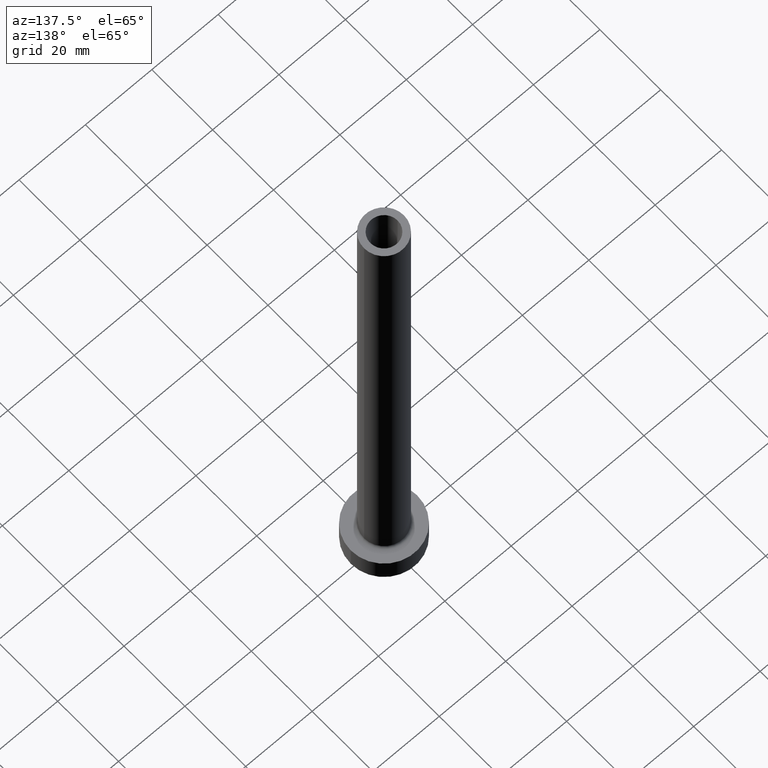
[diagram: clean part render]
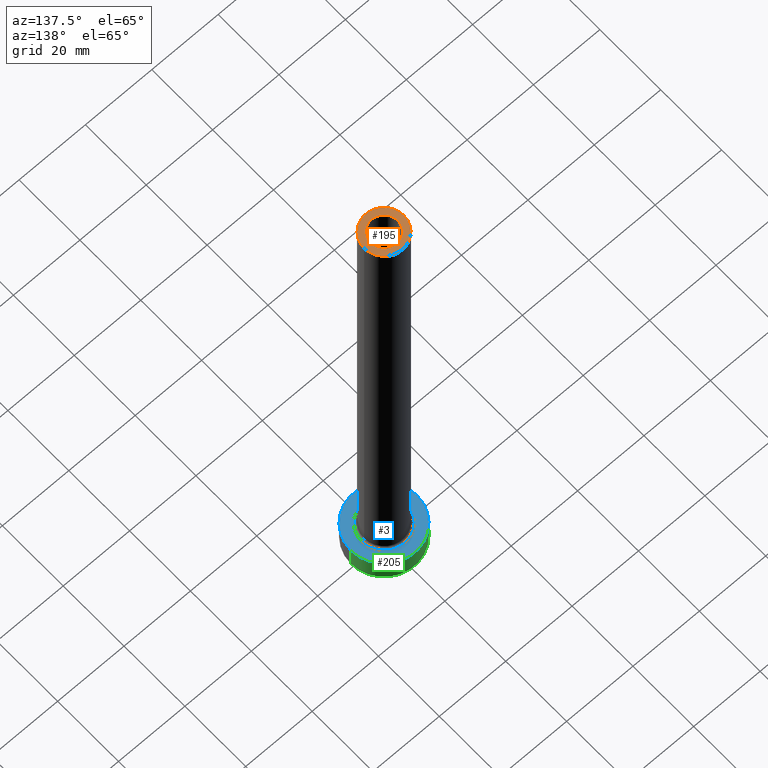
[diagram: same view with three faces highlighted in distinct colors, each labeled with its STEP entity id]
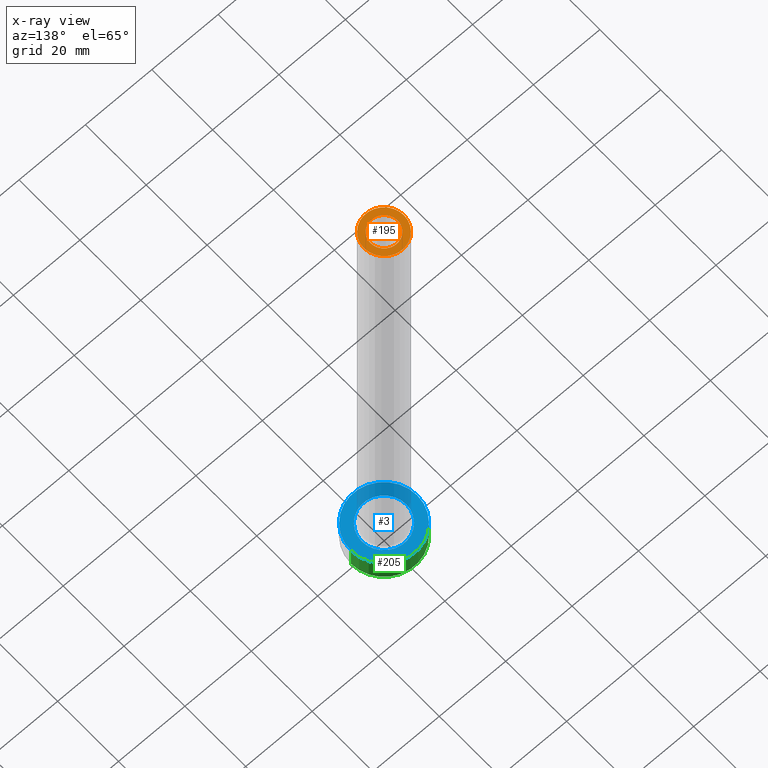
[diagram: x-ray of the same camera — body ghosted, the three highlighted faces saturated]
A machine part, auxiliary view with three faces highlighted in distinct colors.
The next image is the same camera in x-ray (body ghosted, the three faces saturated) — at least one of them is partly hidden behind the body in this view.
Their STEP definitions:

[orange] entity #195 — the highlighted planar face has unit normal (0, 0, 1).
#16 = DIRECTION ( 'NONE',  ( 0.000000000000000000, 0.000000000000000000, 1.000000000000000000 ) ) ;
#17 = CARTESIAN_POINT ( 'NONE',  ( 0.000000000000000000, 0.000000000000000000, 160.0000000000000000 ) ) ;
#24 = CARTESIAN_POINT ( 'NONE',  ( -4.099999999999999645, 0.000000000000000000, 160.0000000000000000 ) ) ;
#32 = EDGE_LOOP ( 'NONE', ( #171, #68 ) ) ;
#43 = CIRCLE ( 'NONE', #166, 4.099999999999999645 ) ;
#49 = ORIENTED_EDGE ( 'NONE', *, *, #74, .T. ) ;
#68 = ORIENTED_EDGE ( 'NONE', *, *, #269, .F. ) ;
#74 = EDGE_CURVE ( 'NONE', #182, #264, #335, .T. ) ;
#76 = CARTESIAN_POINT ( 'NONE',  ( 6.000000000000000888, 7.347880794884120722E-16, 160.0000000000000000 ) ) ;
#90 = VERTEX_POINT ( 'NONE', #426 ) ;
#118 = DIRECTION ( 'NONE',  ( 0.000000000000000000, 0.000000000000000000, 1.000000000000000000 ) ) ;
#131 = VERTEX_POINT ( 'NONE', #24 ) ;
#136 = DIRECTION ( 'NONE',  ( 1.000000000000000000, 0.000000000000000000, -0.000000000000000000 ) ) ;
#143 = AXIS2_PLACEMENT_3D ( 'NONE', #389, #190, #226 ) ;
#151 = FACE_BOUND ( 'NONE', #32, .T. ) ;
#166 = AXIS2_PLACEMENT_3D ( 'NONE', #301, #16, #193 ) ;
#168 = EDGE_CURVE ( 'NONE', #264, #182, #459, .T. ) ;
#171 = ORIENTED_EDGE ( 'NONE', *, *, #325, .F. ) ;
#182 = VERTEX_POINT ( 'NONE', #350 ) ;
#190 = DIRECTION ( 'NONE',  ( 0.000000000000000000, 0.000000000000000000, 1.000000000000000000 ) ) ;
#193 = DIRECTION ( 'NONE',  ( 1.000000000000000000, 0.000000000000000000, 0.000000000000000000 ) ) ;
#195 = ADVANCED_FACE ( 'NONE', ( #151, #277 ), #204, .T. ) ;
#196 = CARTESIAN_POINT ( 'NONE',  ( 0.000000000000000000, 0.000000000000000000, 160.0000000000000000 ) ) ;
#201 = EDGE_LOOP ( 'NONE', ( #49, #411 ) ) ;
#204 = PLANE ( 'NONE',  #276 ) ;
#226 = DIRECTION ( 'NONE',  ( 1.000000000000000000, 0.000000000000000000, 0.000000000000000000 ) ) ;
#241 = AXIS2_PLACEMENT_3D ( 'NONE', #196, #118, #439 ) ;
#264 = VERTEX_POINT ( 'NONE', #76 ) ;
#265 = DIRECTION ( 'NONE',  ( 1.000000000000000000, 0.000000000000000000, 0.000000000000000000 ) ) ;
#269 = EDGE_CURVE ( 'NONE', #90, #131, #43, .T. ) ;
#271 = DIRECTION ( 'NONE',  ( 0.000000000000000000, 0.000000000000000000, 1.000000000000000000 ) ) ;
#276 = AXIS2_PLACEMENT_3D ( 'NONE', #284, #345, #136 ) ;
#277 = FACE_OUTER_BOUND ( 'NONE', #201, .T. ) ;
#284 = CARTESIAN_POINT ( 'NONE',  ( 0.000000000000000000, 0.000000000000000000, 160.0000000000000000 ) ) ;
#301 = CARTESIAN_POINT ( 'NONE',  ( 0.000000000000000000, 0.000000000000000000, 160.0000000000000000 ) ) ;
#325 = EDGE_CURVE ( 'NONE', #131, #90, #334, .T. ) ;
#334 = CIRCLE ( 'NONE', #241, 4.099999999999999645 ) ;
#335 = CIRCLE ( 'NONE', #143, 6.000000000000000888 ) ;
#345 = DIRECTION ( 'NONE',  ( 0.000000000000000000, 0.000000000000000000, 1.000000000000000000 ) ) ;
#350 = CARTESIAN_POINT ( 'NONE',  ( -6.000000000000000888, 0.000000000000000000, 160.0000000000000000 ) ) ;
#389 = CARTESIAN_POINT ( 'NONE',  ( 0.000000000000000000, 0.000000000000000000, 160.0000000000000000 ) ) ;
#411 = ORIENTED_EDGE ( 'NONE', *, *, #168, .T. ) ;
#426 = CARTESIAN_POINT ( 'NONE',  ( 4.099999999999999645, 5.021051876504146399E-16, 160.0000000000000000 ) ) ;
#429 = AXIS2_PLACEMENT_3D ( 'NONE', #17, #271, #265 ) ;
#439 = DIRECTION ( 'NONE',  ( 1.000000000000000000, 0.000000000000000000, 0.000000000000000000 ) ) ;
#459 = CIRCLE ( 'NONE', #429, 6.000000000000000888 ) ;

[blue] entity #3 — the highlighted planar face has unit normal (0, 0, 1).
#3 = ADVANCED_FACE ( 'NONE', ( #328, #71 ), #295, .T. ) ;
#30 = CARTESIAN_POINT ( 'NONE',  ( 0.000000000000000000, 0.000000000000000000, 7.000000000000000000 ) ) ;
#33 = CIRCLE ( 'NONE', #403, 10.00000000000000000 ) ;
#39 = EDGE_LOOP ( 'NONE', ( #443, #406 ) ) ;
#71 = FACE_OUTER_BOUND ( 'NONE', #39, .T. ) ;
#81 = DIRECTION ( 'NONE',  ( 1.000000000000000000, 0.000000000000000000, 0.000000000000000000 ) ) ;
#99 = EDGE_CURVE ( 'NONE', #107, #344, #213, .T. ) ;
#107 = VERTEX_POINT ( 'NONE', #329 ) ;
#109 = CIRCLE ( 'NONE', #421, 6.700000000000001066 ) ;
#128 = CARTESIAN_POINT ( 'NONE',  ( 0.000000000000000000, 0.000000000000000000, 7.000000000000000000 ) ) ;
#148 = CARTESIAN_POINT ( 'NONE',  ( 0.000000000000000000, 0.000000000000000000, 7.000000000000000000 ) ) ;
#152 = VERTEX_POINT ( 'NONE', #352 ) ;
#184 = DIRECTION ( 'NONE',  ( 0.000000000000000000, 0.000000000000000000, 1.000000000000000000 ) ) ;
#202 = DIRECTION ( 'NONE',  ( -0.000000000000000000, -0.000000000000000000, -1.000000000000000000 ) ) ;
#203 = EDGE_CURVE ( 'NONE', #242, #152, #349, .T. ) ;
#211 = DIRECTION ( 'NONE',  ( 1.000000000000000000, 0.000000000000000000, 0.000000000000000000 ) ) ;
#213 = CIRCLE ( 'NONE', #261, 10.00000000000000000 ) ;
#225 = ORIENTED_EDGE ( 'NONE', *, *, #203, .T. ) ;
#242 = VERTEX_POINT ( 'NONE', #448 ) ;
#261 = AXIS2_PLACEMENT_3D ( 'NONE', #148, #292, #432 ) ;
#262 = EDGE_LOOP ( 'NONE', ( #456, #225 ) ) ;
#283 = CARTESIAN_POINT ( 'NONE',  ( -10.00000000000000000, 0.000000000000000000, 7.000000000000000000 ) ) ;
#288 = CARTESIAN_POINT ( 'NONE',  ( 0.000000000000000000, 0.000000000000000000, 7.000000000000000000 ) ) ;
#292 = DIRECTION ( 'NONE',  ( 0.000000000000000000, 0.000000000000000000, 1.000000000000000000 ) ) ;
#295 = PLANE ( 'NONE',  #309 ) ;
#309 = AXIS2_PLACEMENT_3D ( 'NONE', #288, #184, #361 ) ;
#328 = FACE_BOUND ( 'NONE', #262, .T. ) ;
#329 = CARTESIAN_POINT ( 'NONE',  ( 10.00000000000000000, 1.224646799147353256E-15, 7.000000000000000000 ) ) ;
#344 = VERTEX_POINT ( 'NONE', #283 ) ;
#349 = CIRCLE ( 'NONE', #440, 6.700000000000001066 ) ;
#352 = CARTESIAN_POINT ( 'NONE',  ( 6.700000000000001066, 0.000000000000000000, 7.000000000000006217 ) ) ;
#361 = DIRECTION ( 'NONE',  ( 1.000000000000000000, 0.000000000000000000, -0.000000000000000000 ) ) ;
#373 = EDGE_CURVE ( 'NONE', #344, #107, #33, .T. ) ;
#390 = DIRECTION ( 'NONE',  ( 1.000000000000000000, 0.000000000000000000, 0.000000000000000000 ) ) ;
#403 = AXIS2_PLACEMENT_3D ( 'NONE', #128, #413, #211 ) ;
#406 = ORIENTED_EDGE ( 'NONE', *, *, #99, .T. ) ;
#407 = CARTESIAN_POINT ( 'NONE',  ( 0.000000000000000000, 0.000000000000000000, 7.000000000000000000 ) ) ;
#413 = DIRECTION ( 'NONE',  ( 0.000000000000000000, 0.000000000000000000, 1.000000000000000000 ) ) ;
#417 = DIRECTION ( 'NONE',  ( -0.000000000000000000, -0.000000000000000000, -1.000000000000000000 ) ) ;
#421 = AXIS2_PLACEMENT_3D ( 'NONE', #30, #417, #390 ) ;
#432 = DIRECTION ( 'NONE',  ( 1.000000000000000000, 0.000000000000000000, 0.000000000000000000 ) ) ;
#440 = AXIS2_PLACEMENT_3D ( 'NONE', #407, #202, #81 ) ;
#442 = EDGE_CURVE ( 'NONE', #152, #242, #109, .T. ) ;
#443 = ORIENTED_EDGE ( 'NONE', *, *, #373, .T. ) ;
#448 = CARTESIAN_POINT ( 'NONE',  ( -6.700000000000001066, 8.205133554287267548E-16, 7.000000000000006217 ) ) ;
#456 = ORIENTED_EDGE ( 'NONE', *, *, #442, .T. ) ;

[green] entity #205 — the highlighted cylindrical surface (partial cylindrical patch) has radius 10 mm, axis along (-0, -0, -1).
#48 = DIRECTION ( 'NONE',  ( -0.000000000000000000, -0.000000000000000000, -1.000000000000000000 ) ) ;
#50 = DIRECTION ( 'NONE',  ( -0.000000000000000000, -0.000000000000000000, -1.000000000000000000 ) ) ;
#73 = AXIS2_PLACEMENT_3D ( 'NONE', #244, #173, #97 ) ;
#97 = DIRECTION ( 'NONE',  ( 1.000000000000000000, 0.000000000000000000, 0.000000000000000000 ) ) ;
#99 = EDGE_CURVE ( 'NONE', #107, #344, #213, .T. ) ;
#107 = VERTEX_POINT ( 'NONE', #329 ) ;
#114 = AXIS2_PLACEMENT_3D ( 'NONE', #172, #50, #347 ) ;
#116 = ORIENTED_EDGE ( 'NONE', *, *, #147, .T. ) ;
#126 = VERTEX_POINT ( 'NONE', #376 ) ;
#132 = CYLINDRICAL_SURFACE ( 'NONE', #114, 10.00000000000000000 ) ;
#138 = ORIENTED_EDGE ( 'NONE', *, *, #365, .F. ) ;
#147 = EDGE_CURVE ( 'NONE', #107, #126, #207, .T. ) ;
#148 = CARTESIAN_POINT ( 'NONE',  ( 0.000000000000000000, 0.000000000000000000, 7.000000000000000000 ) ) ;
#153 = CIRCLE ( 'NONE', #73, 10.00000000000000000 ) ;
#172 = CARTESIAN_POINT ( 'NONE',  ( 0.000000000000000000, 0.000000000000000000, 7.000000000000000000 ) ) ;
#173 = DIRECTION ( 'NONE',  ( 0.000000000000000000, 0.000000000000000000, 1.000000000000000000 ) ) ;
#205 = ADVANCED_FACE ( 'NONE', ( #453 ), #132, .T. ) ;
#207 = LINE ( 'NONE', #281, #383 ) ;
#213 = CIRCLE ( 'NONE', #261, 10.00000000000000000 ) ;
#237 = EDGE_LOOP ( 'NONE', ( #310, #116, #249, #138 ) ) ;
#244 = CARTESIAN_POINT ( 'NONE',  ( 0.000000000000000000, 0.000000000000000000, 0.000000000000000000 ) ) ;
#249 = ORIENTED_EDGE ( 'NONE', *, *, #370, .T. ) ;
#257 = CARTESIAN_POINT ( 'NONE',  ( -10.00000000000000000, 0.000000000000000000, 0.000000000000000000 ) ) ;
#261 = AXIS2_PLACEMENT_3D ( 'NONE', #148, #292, #432 ) ;
#281 = CARTESIAN_POINT ( 'NONE',  ( 10.00000000000000000, 1.224646799147353256E-15, 7.000000000000000000 ) ) ;
#283 = CARTESIAN_POINT ( 'NONE',  ( -10.00000000000000000, 0.000000000000000000, 7.000000000000000000 ) ) ;
#292 = DIRECTION ( 'NONE',  ( 0.000000000000000000, 0.000000000000000000, 1.000000000000000000 ) ) ;
#299 = VECTOR ( 'NONE', #48, 1000.000000000000000 ) ;
#310 = ORIENTED_EDGE ( 'NONE', *, *, #99, .F. ) ;
#329 = CARTESIAN_POINT ( 'NONE',  ( 10.00000000000000000, 1.224646799147353256E-15, 7.000000000000000000 ) ) ;
#344 = VERTEX_POINT ( 'NONE', #283 ) ;
#347 = DIRECTION ( 'NONE',  ( -1.000000000000000000, 0.000000000000000000, 0.000000000000000000 ) ) ;
#348 = CARTESIAN_POINT ( 'NONE',  ( -10.00000000000000000, 0.000000000000000000, 7.000000000000000000 ) ) ;
#365 = EDGE_CURVE ( 'NONE', #344, #420, #382, .T. ) ;
#370 = EDGE_CURVE ( 'NONE', #126, #420, #153, .T. ) ;
#376 = CARTESIAN_POINT ( 'NONE',  ( 10.00000000000000000, 1.224646799147353256E-15, 0.000000000000000000 ) ) ;
#382 = LINE ( 'NONE', #348, #299 ) ;
#383 = VECTOR ( 'NONE', #415, 1000.000000000000000 ) ;
#415 = DIRECTION ( 'NONE',  ( -0.000000000000000000, -0.000000000000000000, -1.000000000000000000 ) ) ;
#420 = VERTEX_POINT ( 'NONE', #257 ) ;
#432 = DIRECTION ( 'NONE',  ( 1.000000000000000000, 0.000000000000000000, 0.000000000000000000 ) ) ;
#453 = FACE_OUTER_BOUND ( 'NONE', #237, .T. ) ;